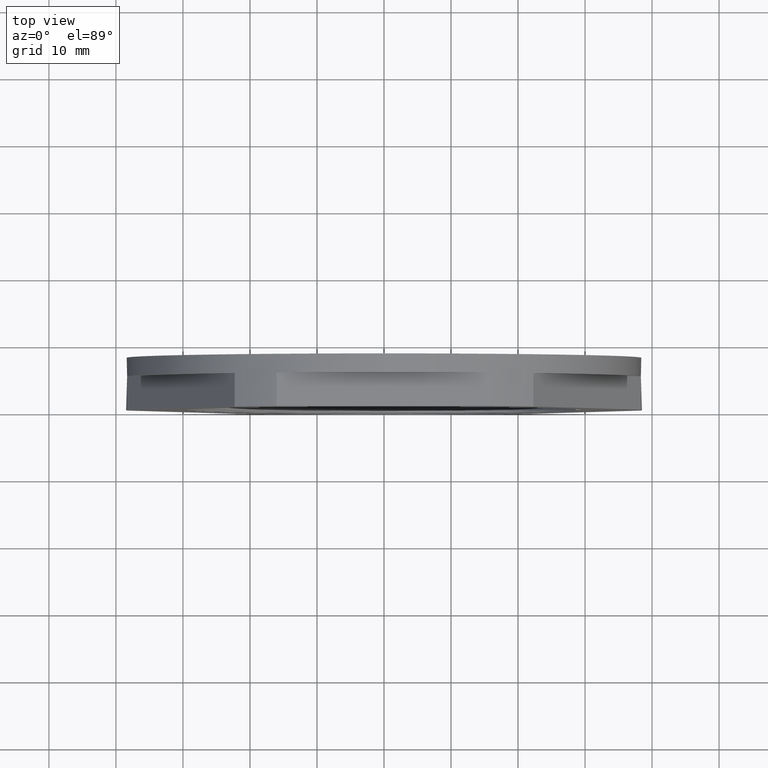
[diagram: clean part render]
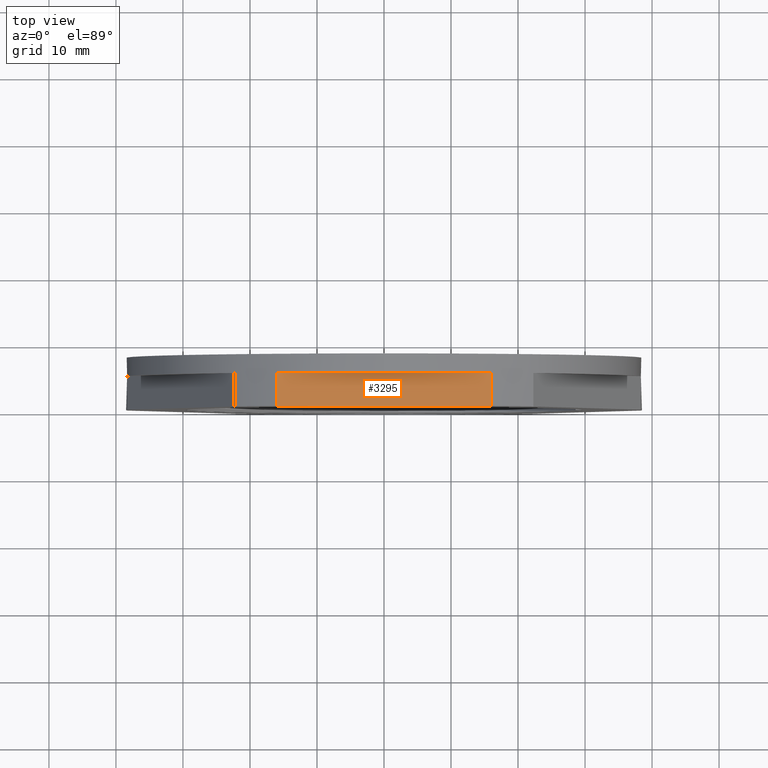
[diagram: same view with one face highlighted and labeled with its STEP entity id]
A machine part, top view. The second image highlights one B-rep face of the part: STEP entity #3295.
In plain terms, the highlighted planar face has unit normal (0, 0, -1).
Its self-contained STEP definition (entity closure, byte-faithful):
#24 = DIRECTION ( 'NONE',  ( -1.000000000000000000, 0.0000000000000000000, -1.716930969985323800E-016 ) ) ;
#45 = CARTESIAN_POINT ( 'NONE',  ( -20.20725942163692300, 0.0000000000000000000, 35.00000000000002100 ) ) ;
#218 = CARTESIAN_POINT ( 'NONE',  ( 0.0000000000000000000, 4.999999999999999100, 35.00000000000002800 ) ) ;
#239 = DIRECTION ( 'NONE',  ( -1.000000000000000000, -0.0000000000000000000, 0.0000000000000000000 ) ) ;
#254 = LINE ( 'NONE', #218, #3073 ) ;
#667 = LINE ( 'NONE', #45, #3065 ) ;
#1177 = DIRECTION ( 'NONE',  ( -1.000000000000000000, 0.0000000000000000000, -1.716930969985323800E-016 ) ) ;
#1179 = PLANE ( 'NONE',  #3097 ) ;
#1187 = CARTESIAN_POINT ( 'NONE',  ( -20.20725942163692300, 7.799999999999999800, 35.00000000000002100 ) ) ;
#1193 = DIRECTION ( 'NONE',  ( 1.716930969985323800E-016, 0.0000000000000000000, -1.000000000000000000 ) ) ;
#1212 = FACE_OUTER_BOUND ( 'NONE', #1889, .T. ) ;
#1367 = ORIENTED_EDGE ( 'NONE', *, *, #3238, .F. ) ;
#1373 = ORIENTED_EDGE ( 'NONE', *, *, #3161, .F. ) ;
#1376 = ORIENTED_EDGE ( 'NONE', *, *, #3251, .T. ) ;
#1550 = CARTESIAN_POINT ( 'NONE',  ( -16.03901493234538800, 4.999999999999999100, 35.00000000000002100 ) ) ;
#1556 = CARTESIAN_POINT ( 'NONE',  ( 16.03901493234537100, 4.999999999999999100, 35.00000000000002800 ) ) ;
#1584 = CARTESIAN_POINT ( 'NONE',  ( -16.03901493234539200, 0.0000000000000000000, 35.00000000000002100 ) ) ;
#1591 = CARTESIAN_POINT ( 'NONE',  ( 16.03901493234536700, 0.0000000000000000000, 35.00000000000002800 ) ) ;
#1596 = DIRECTION ( 'NONE',  ( -0.0000000000000000000, -1.000000000000000000, -0.0000000000000000000 ) ) ;
#1599 = CARTESIAN_POINT ( 'NONE',  ( 16.03901493234536700, 0.0000000000000000000, 35.00000000000002800 ) ) ;
#1627 = LINE ( 'NONE', #1599, #3151 ) ;
#1774 = LINE ( 'NONE', #1784, #3034 ) ;
#1784 = CARTESIAN_POINT ( 'NONE',  ( -16.03901493234540300, 0.0000000000000000000, 35.00000000000001400 ) ) ;
#1786 = DIRECTION ( 'NONE',  ( 0.0000000000000000000, 1.000000000000000000, 0.0000000000000000000 ) ) ;
#1881 = VERTEX_POINT ( 'NONE', #1591 ) ;
#1889 = EDGE_LOOP ( 'NONE', ( #1987, #1367, #1373, #1376 ) ) ;
#1903 = VERTEX_POINT ( 'NONE', #1556 ) ;
#1944 = VERTEX_POINT ( 'NONE', #1584 ) ;
#1966 = VERTEX_POINT ( 'NONE', #1550 ) ;
#1987 = ORIENTED_EDGE ( 'NONE', *, *, #3196, .F. ) ;
#3034 = VECTOR ( 'NONE', #1786, 1000.000000000000000 ) ;
#3065 = VECTOR ( 'NONE', #24, 1000.000000000000000 ) ;
#3073 = VECTOR ( 'NONE', #239, 1000.000000000000000 ) ;
#3097 = AXIS2_PLACEMENT_3D ( 'NONE', #1187, #1193, #1177 ) ;
#3151 = VECTOR ( 'NONE', #1596, 1000.000000000000000 ) ;
#3161 = EDGE_CURVE ( 'NONE', #1903, #1881, #1627, .T. ) ;
#3196 = EDGE_CURVE ( 'NONE', #1944, #1966, #1774, .T. ) ;
#3238 = EDGE_CURVE ( 'NONE', #1881, #1944, #667, .T. ) ;
#3251 = EDGE_CURVE ( 'NONE', #1903, #1966, #254, .T. ) ;
#3295 = ADVANCED_FACE ( 'NONE', ( #1212 ), #1179, .F. ) ;